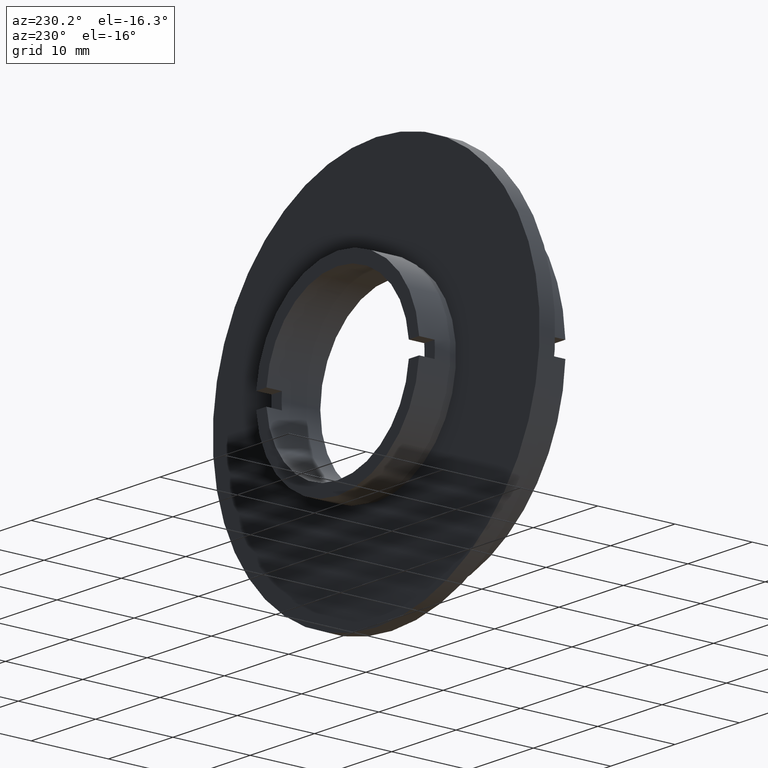
[diagram: clean part render]
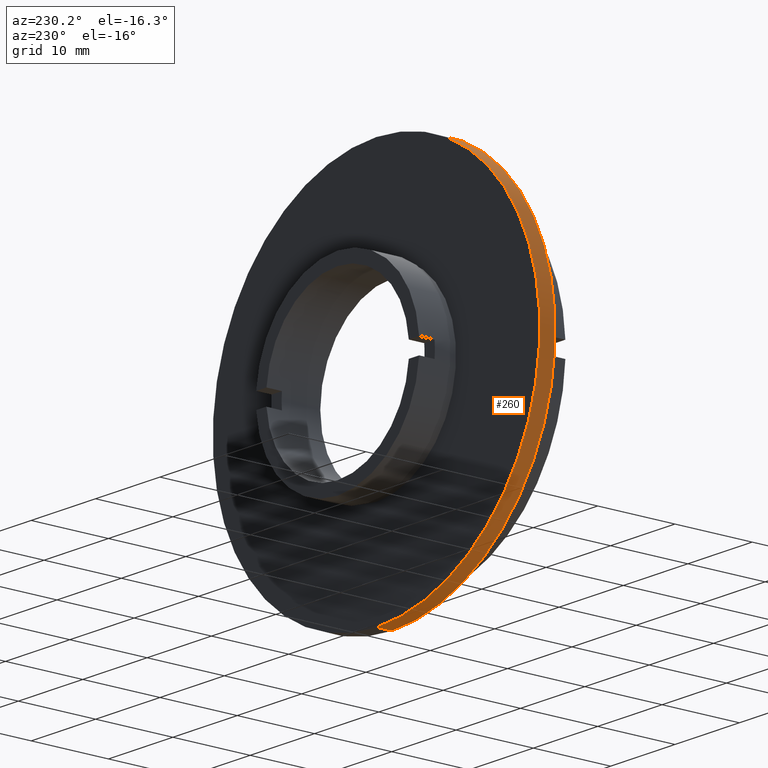
[diagram: same view with one face highlighted and labeled with its STEP entity id]
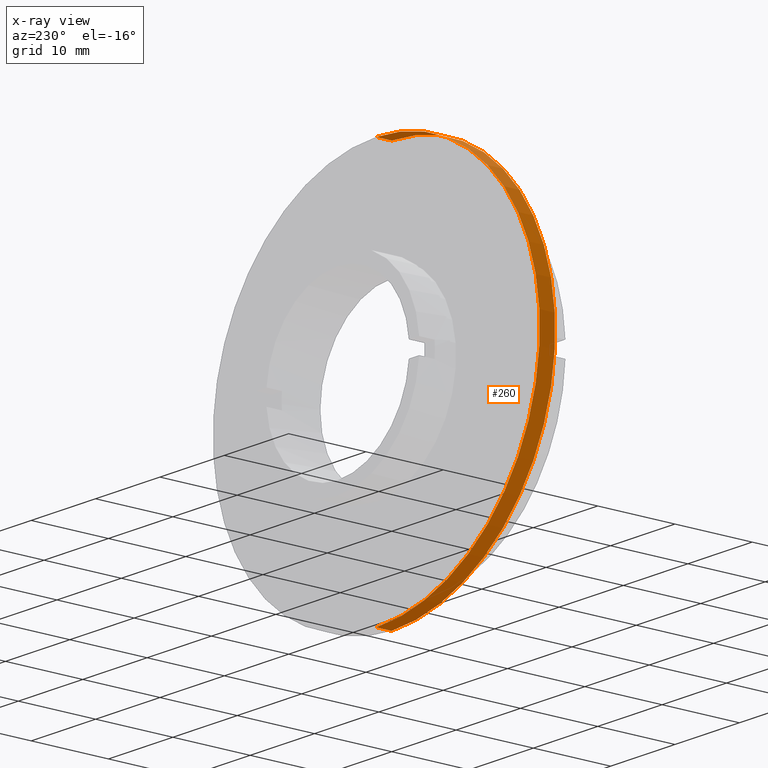
[diagram: x-ray of the same camera — body ghosted, the highlighted face saturated]
A machine part, auxiliary view. The second image highlights one B-rep face of the part: STEP entity #260.
The next image is the same camera in x-ray: the body ghosted, the highlighted face saturated — about 0% of this face is hidden behind the body in this view.
In plain terms, the highlighted cylindrical surface (partial cylindrical patch) has radius 25.4 mm, axis along (-0, 1, -0).
Its self-contained STEP definition (entity closure, byte-faithful):
#17 = ORIENTED_EDGE ( 'NONE', *, *, #693, .T. ) ;
#99 = CARTESIAN_POINT ( 'NONE',  ( 3.110602869834276500E-015, 5.000000000000000900, -25.39999999999999500 ) ) ;
#109 = CARTESIAN_POINT ( 'NONE',  ( 3.110602869834276500E-015, 6.999999999999999100, -25.39999999999999500 ) ) ;
#125 = FACE_OUTER_BOUND ( 'NONE', #1249, .T. ) ;
#179 = DIRECTION ( 'NONE',  ( -0.0000000000000000000, 1.000000000000000000, -0.0000000000000000000 ) ) ;
#255 = CIRCLE ( 'NONE', #616, 25.39999999999999500 ) ;
#256 = VERTEX_POINT ( 'NONE', #1336 ) ;
#260 = ADVANCED_FACE ( 'NONE', ( #125 ), #577, .T. ) ;
#298 = LINE ( 'NONE', #477, #641 ) ;
#384 = DIRECTION ( 'NONE',  ( -0.0000000000000000000, 1.000000000000000000, -0.0000000000000000000 ) ) ;
#402 = ORIENTED_EDGE ( 'NONE', *, *, #527, .F. ) ;
#468 = DIRECTION ( 'NONE',  ( -0.0000000000000000000, 1.000000000000000000, -0.0000000000000000000 ) ) ;
#477 = CARTESIAN_POINT ( 'NONE',  ( 3.110602869834276500E-015, 22.67749945107591400, -25.39999999999999500 ) ) ;
#527 = EDGE_CURVE ( 'NONE', #587, #256, #1331, .T. ) ;
#577 = CYLINDRICAL_SURFACE ( 'NONE', #987, 25.39999999999999500 ) ;
#587 = VERTEX_POINT ( 'NONE', #109 ) ;
#616 = AXIS2_PLACEMENT_3D ( 'NONE', #842, #830, #820 ) ;
#641 = VECTOR ( 'NONE', #468, 1000.000000000000000 ) ;
#687 = CARTESIAN_POINT ( 'NONE',  ( 0.0000000000000000000, 22.67749945107591400, 25.39999999999999500 ) ) ;
#693 = EDGE_CURVE ( 'NONE', #863, #256, #706, .T. ) ;
#706 = LINE ( 'NONE', #687, #1083 ) ;
#758 = CARTESIAN_POINT ( 'NONE',  ( 0.0000000000000000000, 5.000000000000000900, 25.39999999999999500 ) ) ;
#820 = DIRECTION ( 'NONE',  ( 0.0000000000000000000, 0.0000000000000000000, 1.000000000000000000 ) ) ;
#830 = DIRECTION ( 'NONE',  ( -0.0000000000000000000, 1.000000000000000000, -0.0000000000000000000 ) ) ;
#842 = CARTESIAN_POINT ( 'NONE',  ( 0.0000000000000000000, 5.000000000000000900, 0.0000000000000000000 ) ) ;
#863 = VERTEX_POINT ( 'NONE', #758 ) ;
#881 = EDGE_CURVE ( 'NONE', #1000, #863, #255, .T. ) ;
#887 = ORIENTED_EDGE ( 'NONE', *, *, #1078, .F. ) ;
#909 = CARTESIAN_POINT ( 'NONE',  ( 0.0000000000000000000, 6.999999999999999100, 0.0000000000000000000 ) ) ;
#930 = ORIENTED_EDGE ( 'NONE', *, *, #881, .T. ) ;
#987 = AXIS2_PLACEMENT_3D ( 'NONE', #997, #1017, #991 ) ;
#991 = DIRECTION ( 'NONE',  ( 0.0000000000000000000, 0.0000000000000000000, 1.000000000000000000 ) ) ;
#997 = CARTESIAN_POINT ( 'NONE',  ( 0.0000000000000000000, 22.67749945107591400, 0.0000000000000000000 ) ) ;
#1000 = VERTEX_POINT ( 'NONE', #99 ) ;
#1017 = DIRECTION ( 'NONE',  ( -0.0000000000000000000, 1.000000000000000000, -0.0000000000000000000 ) ) ;
#1078 = EDGE_CURVE ( 'NONE', #1000, #587, #298, .T. ) ;
#1083 = VECTOR ( 'NONE', #179, 1000.000000000000000 ) ;
#1090 = AXIS2_PLACEMENT_3D ( 'NONE', #909, #384, #1298 ) ;
#1249 = EDGE_LOOP ( 'NONE', ( #887, #930, #17, #402 ) ) ;
#1298 = DIRECTION ( 'NONE',  ( 0.0000000000000000000, 0.0000000000000000000, 1.000000000000000000 ) ) ;
#1331 = CIRCLE ( 'NONE', #1090, 25.39999999999999500 ) ;
#1336 = CARTESIAN_POINT ( 'NONE',  ( 0.0000000000000000000, 6.999999999999999100, 25.39999999999999500 ) ) ;